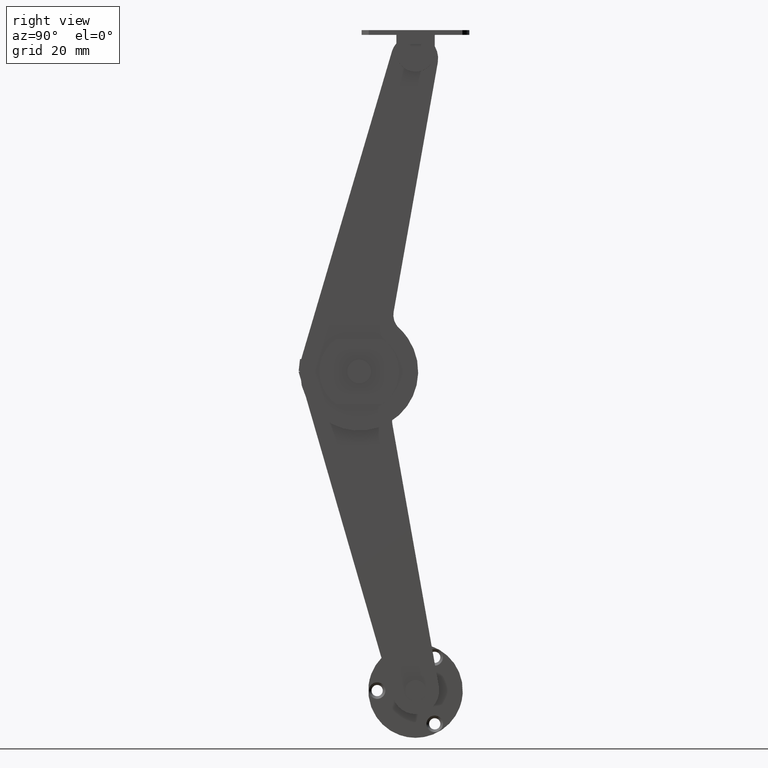
[diagram: clean part render]
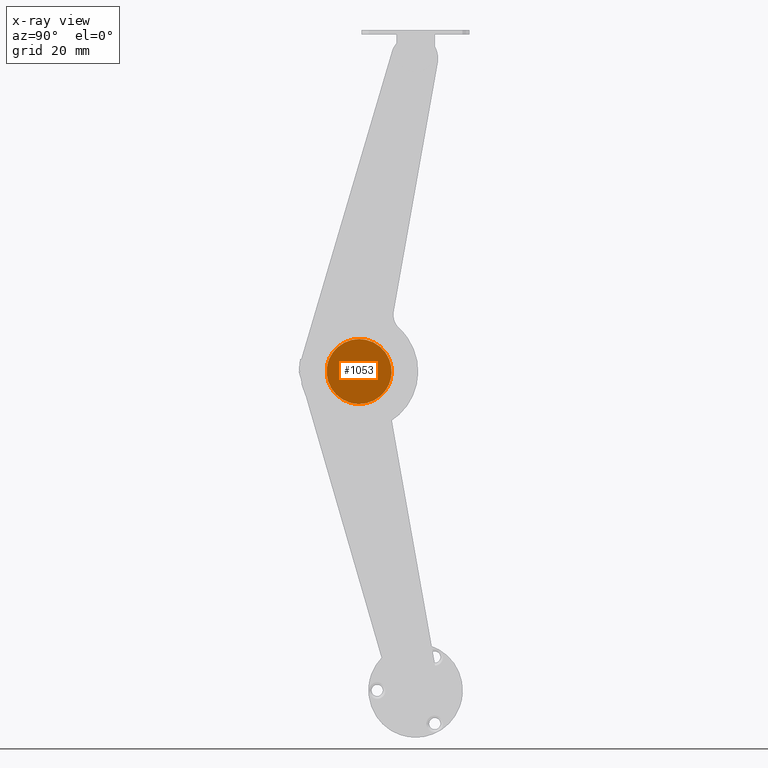
[diagram: x-ray — body ghosted, one internal face saturated and labeled with its STEP entity id]
A machine part, right view, then the same camera in x-ray: the body is ghosted and one INTERNAL B-rep face — a face not visible from any outside direction — is saturated and labeled: STEP entity #1053.
In plain terms, the highlighted face is a freeform B-spline surface patch.
Its self-contained STEP definition (entity closure, byte-faithful):
#686=CARTESIAN_POINT('',(6.899994000000080,-20.590802289157029,0.177051355252871));
#687=VERTEX_POINT('',#686);
#688=CARTESIAN_POINT('',(6.899994000000080,-19.101287999999951,-1.500000000000001));
#689=VERTEX_POINT('',#688);
#690=CARTESIAN_POINT('',(6.899994000000080,-20.590802289157033,0.177051355252871));
#691=CARTESIAN_POINT('',(6.899994000000079,-20.601287999999954,0.088836182780144));
#692=CARTESIAN_POINT('',(6.899994000000080,-20.601287999999951,-1.169578E-015));
#693=CARTESIAN_POINT('',(6.899994000000080,-20.601287999999947,-1.500000000000001));
#694=CARTESIAN_POINT('',(6.899994000000080,-19.101287999999951,-1.500000000000001));
#702=(BOUNDED_CURVE()B_SPLINE_CURVE(2,(#690,#691,#692,#693,#694),.UNSPECIFIED.,.F.,.U.)B_SPLINE_CURVE_WITH_KNOTS((3,2,3),(0.229562472774117,0.250000000000000,0.500000000000000),.UNSPECIFIED.)CURVE()GEOMETRIC_REPRESENTATION_ITEM()RATIONAL_B_SPLINE_CURVE((0.956026752734462,0.976055947464894,1.0,0.707106781186548,1.0))REPRESENTATION_ITEM(''));
#703=EDGE_CURVE('',#687,#689,#702,.T.);
#705=CARTESIAN_POINT('',(6.899994000000080,-17.604085802579721,-0.091572812777775));
#706=VERTEX_POINT('',#705);
#707=CARTESIAN_POINT('',(6.899994000000080,-19.101287999999951,-1.500000000000001));
#708=CARTESIAN_POINT('',(6.899994000000080,-17.690228906204702,-1.500000000000002));
#709=CARTESIAN_POINT('',(6.899994000000080,-17.604085802579714,-0.091572812777775));
#717=(BOUNDED_CURVE()B_SPLINE_CURVE(2,(#707,#708,#709),.UNSPECIFIED.,.F.,.U.)B_SPLINE_CURVE_WITH_KNOTS((3,3),(0.500000000000000,0.739332961440895),.UNSPECIFIED.)CURVE()GEOMETRIC_REPRESENTATION_ITEM()RATIONAL_B_SPLINE_CURVE((1.0,0.719603994221682,0.976072039956348))REPRESENTATION_ITEM(''));
#718=EDGE_CURVE('',#689,#706,#717,.T.);
#785=CARTESIAN_POINT('',(6.899994000000080,-19.101287999999951,1.499999999999999));
#786=VERTEX_POINT('',#785);
#787=CARTESIAN_POINT('',(6.899994000000080,-19.101287999999951,1.499999999999999));
#788=CARTESIAN_POINT('',(6.899994000000079,-20.433549783040352,1.499999999999998));
#789=CARTESIAN_POINT('',(6.899994000000080,-20.590802289157033,0.177051355252871));
#797=(BOUNDED_CURVE()B_SPLINE_CURVE(2,(#787,#788,#789),.UNSPECIFIED.,.F.,.U.)B_SPLINE_CURVE_WITH_KNOTS((3,3),(0.0,0.229562472774117),.UNSPECIFIED.)CURVE()GEOMETRIC_REPRESENTATION_ITEM()RATIONAL_B_SPLINE_CURVE((1.0,0.731050833721653,0.956026752734462))REPRESENTATION_ITEM(''));
#798=EDGE_CURVE('',#786,#687,#797,.T.);
#832=CARTESIAN_POINT('',(6.899994000000080,-17.604085802579718,-0.091572812777775));
#833=CARTESIAN_POINT('',(6.899994000000080,-17.601287999999947,-0.045829148433118));
#834=CARTESIAN_POINT('',(6.899994000000080,-17.601287999999951,-1.169578E-015));
#835=CARTESIAN_POINT('',(6.899994000000080,-17.601287999999951,1.500000000000000));
#836=CARTESIAN_POINT('',(6.899994000000080,-19.101287999999951,1.499999999999999));
#844=(BOUNDED_CURVE()B_SPLINE_CURVE(2,(#832,#833,#834,#835,#836),.UNSPECIFIED.,.F.,.U.)B_SPLINE_CURVE_WITH_KNOTS((3,2,3),(0.739332961440895,0.750000000000000,1.0),.UNSPECIFIED.)CURVE()GEOMETRIC_REPRESENTATION_ITEM()RATIONAL_B_SPLINE_CURVE((0.976072039956349,0.987502786964866,1.0,0.707106781186548,1.0))REPRESENTATION_ITEM(''));
#845=EDGE_CURVE('',#706,#786,#844,.T.);
#872=CARTESIAN_POINT('',(6.899994000008057,-30.024394401469390,1.298363023963036));
#873=VERTEX_POINT('',#872);
#874=CARTESIAN_POINT('',(6.899994000000080,-19.101287999999951,-11.000000000000160));
#875=VERTEX_POINT('',#874);
#876=CARTESIAN_POINT('',(6.899994000008057,-30.024394401469383,1.298363023963036));
#877=CARTESIAN_POINT('',(6.899994000000080,-30.101288000000107,0.651458465878801));
#878=CARTESIAN_POINT('',(6.899994000000080,-30.101288000000110,-1.169578E-015));
#879=CARTESIAN_POINT('',(6.899994000000080,-30.101288000000100,-11.000000000000160));
#880=CARTESIAN_POINT('',(6.899994000000080,-19.101287999999951,-11.000000000000160));
#888=(BOUNDED_CURVE()B_SPLINE_CURVE(2,(#876,#877,#878,#879,#880),.UNSPECIFIED.,.F.,.U.)B_SPLINE_CURVE_WITH_KNOTS((3,2,3),(0.229562683274813,0.250000000000000,0.500000000000000),.UNSPECIFIED.)CURVE()GEOMETRIC_REPRESENTATION_ITEM()RATIONAL_B_SPLINE_CURVE((0.956027165324853,0.976056194081800,1.0,0.707106781186548,1.0))REPRESENTATION_ITEM(''));
#889=EDGE_CURVE('',#873,#875,#888,.T.);
#930=CARTESIAN_POINT('',(6.899994000000080,-8.121805217390778,-0.671533935398804));
#931=VERTEX_POINT('',#930);
#937=CARTESIAN_POINT('',(6.899994000000080,-19.101287999999951,-11.000000000000160));
#938=CARTESIAN_POINT('',(6.899994000000080,-8.753521265010461,-11.000000000000160));
#939=CARTESIAN_POINT('',(6.899994000000080,-8.121805217390778,-0.671533935398804));
#947=(BOUNDED_CURVE()B_SPLINE_CURVE(2,(#937,#938,#939),.UNSPECIFIED.,.F.,.U.)B_SPLINE_CURVE_WITH_KNOTS((3,3),(0.500000000000000,0.739332962225769),.UNSPECIFIED.)CURVE()GEOMETRIC_REPRESENTATION_ITEM()RATIONAL_B_SPLINE_CURVE((1.0,0.719603993302144,0.976072041638483))REPRESENTATION_ITEM(''));
#948=EDGE_CURVE('',#875,#931,#947,.T.);
#971=CARTESIAN_POINT('',(6.899994000000080,-19.101287999999951,11.000000000000160));
#972=VERTEX_POINT('',#971);
#973=CARTESIAN_POINT('',(6.899994000000080,-19.101287999999951,11.000000000000160));
#974=CARTESIAN_POINT('',(6.899994000000080,-28.871219996813625,11.000000000000158));
#975=CARTESIAN_POINT('',(6.899994000008057,-30.024394401469383,1.298363023963036));
#983=(BOUNDED_CURVE()B_SPLINE_CURVE(2,(#973,#974,#975),.UNSPECIFIED.,.F.,.U.)B_SPLINE_CURVE_WITH_KNOTS((3,3),(0.0,0.229562683274813),.UNSPECIFIED.)CURVE()GEOMETRIC_REPRESENTATION_ITEM()RATIONAL_B_SPLINE_CURVE((1.0,0.731050587104748,0.956027165324853))REPRESENTATION_ITEM(''));
#984=EDGE_CURVE('',#972,#873,#983,.T.);
#986=CARTESIAN_POINT('',(6.899994000000080,-8.121805217390778,-0.671533935398804));
#987=CARTESIAN_POINT('',(6.899994000000080,-8.101287999999792,-0.336080396801295));
#988=CARTESIAN_POINT('',(6.899994000000080,-8.101287999999791,-1.169578E-015));
#989=CARTESIAN_POINT('',(6.899994000000080,-8.101287999999792,11.000000000000158));
#990=CARTESIAN_POINT('',(6.899994000000080,-19.101287999999951,11.000000000000160));
#998=(BOUNDED_CURVE()B_SPLINE_CURVE(2,(#986,#987,#988,#989,#990),.UNSPECIFIED.,.F.,.U.)B_SPLINE_CURVE_WITH_KNOTS((3,2,3),(0.739332962225770,0.750000000000000,1.0),.UNSPECIFIED.)CURVE()GEOMETRIC_REPRESENTATION_ITEM()RATIONAL_B_SPLINE_CURVE((0.976072041638486,0.987502787884404,1.0,0.707106781186548,1.0))REPRESENTATION_ITEM(''));
#999=EDGE_CURVE('',#931,#972,#998,.T.);
#1036=CARTESIAN_POINT('',(6.899994000000110,-31.199989335971360,12.098899957359910));
#1037=CARTESIAN_POINT('',(6.899994000000110,-7.002655704088581,12.098899957359910));
#1038=CARTESIAN_POINT('',(6.899994000000110,-31.199989335971360,-12.098900547445890));
#1039=CARTESIAN_POINT('',(6.899994000000110,-7.002655704088581,-12.098900547445890));
#1040=B_SPLINE_SURFACE_WITH_KNOTS('',1,1,((#1036,#1038),(#1037,#1039)),.UNSPECIFIED.,.F.,.F.,.U.,(2,2),(2,2),(0.0,24.197333631882771),(0.0,24.197800504805802),.UNSPECIFIED.);
#1041=ORIENTED_EDGE('',*,*,#984,.T.);
#1042=ORIENTED_EDGE('',*,*,#889,.T.);
#1043=ORIENTED_EDGE('',*,*,#948,.T.);
#1044=ORIENTED_EDGE('',*,*,#999,.T.);
#1045=EDGE_LOOP('',(#1041,#1042,#1043,#1044));
#1046=FACE_OUTER_BOUND('',#1045,.T.);
#1047=ORIENTED_EDGE('',*,*,#718,.F.);
#1048=ORIENTED_EDGE('',*,*,#703,.F.);
#1049=ORIENTED_EDGE('',*,*,#798,.F.);
#1050=ORIENTED_EDGE('',*,*,#845,.F.);
#1051=EDGE_LOOP('',(#1047,#1048,#1049,#1050));
#1052=FACE_BOUND('',#1051,.T.);
#1053=ADVANCED_FACE('',(#1046,#1052),#1040,.F.);